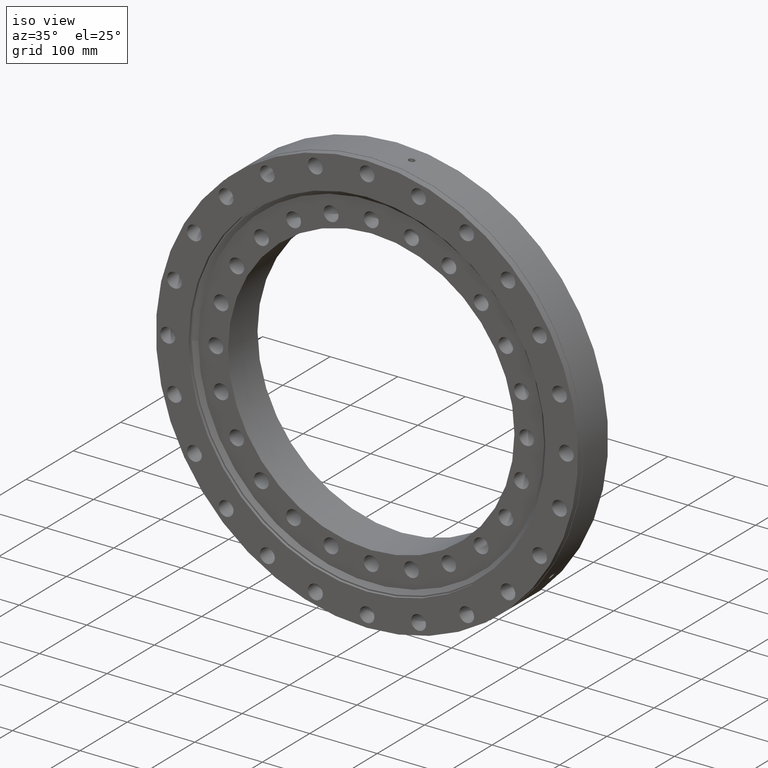
[diagram: clean part render]
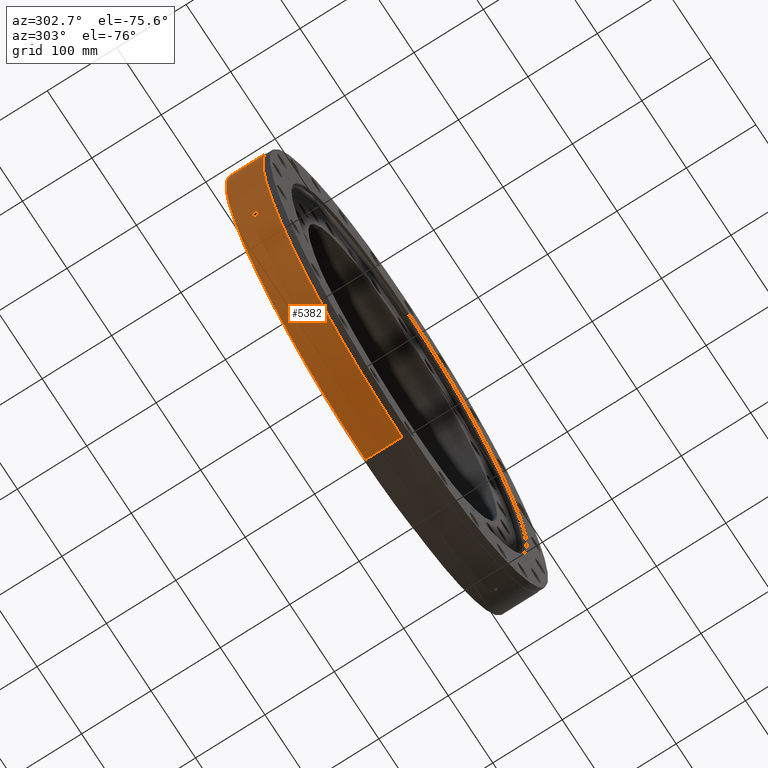
[diagram: tour spotlight — one face highlighted and labeled with its STEP entity id]
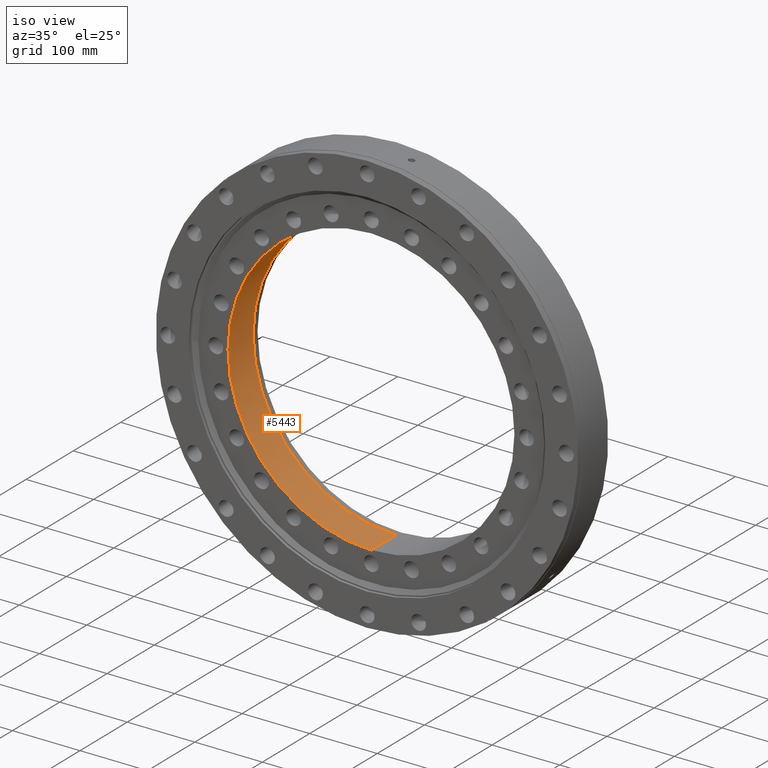
[diagram: tour spotlight — one face highlighted and labeled with its STEP entity id]
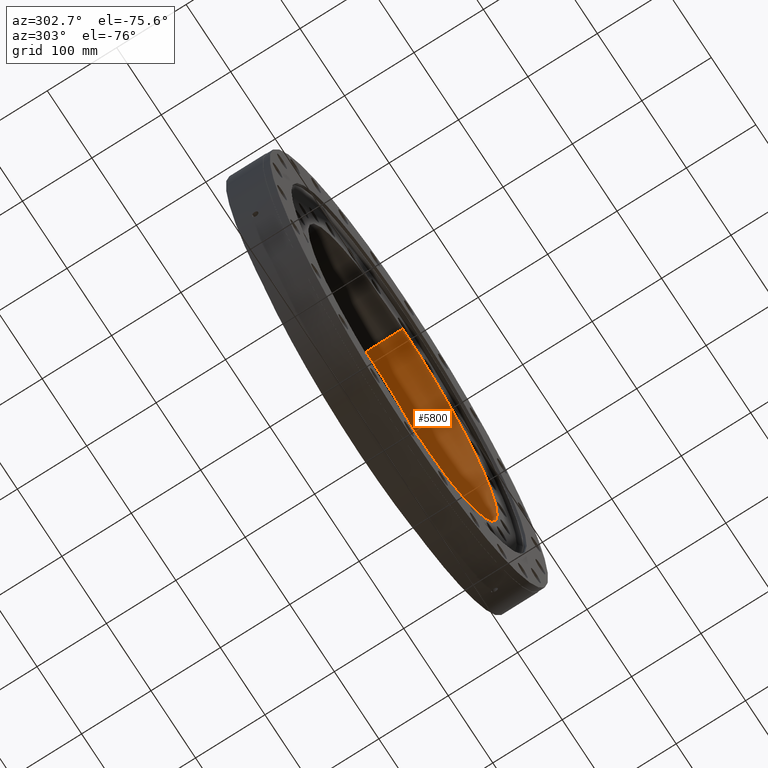
[diagram: tour spotlight — one face highlighted and labeled with its STEP entity id]
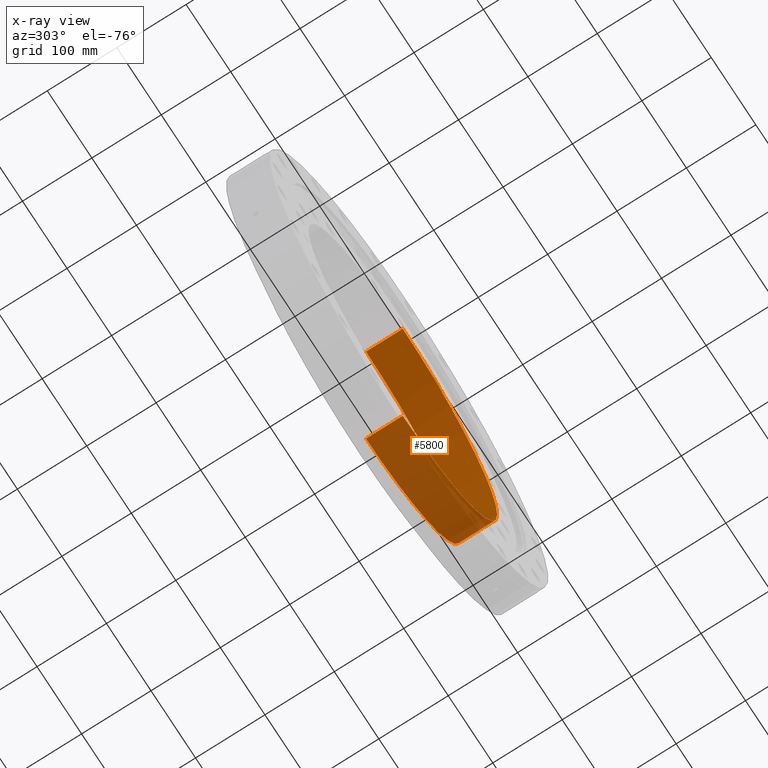
[diagram: x-ray of the same camera — body ghosted, this tour face saturated]
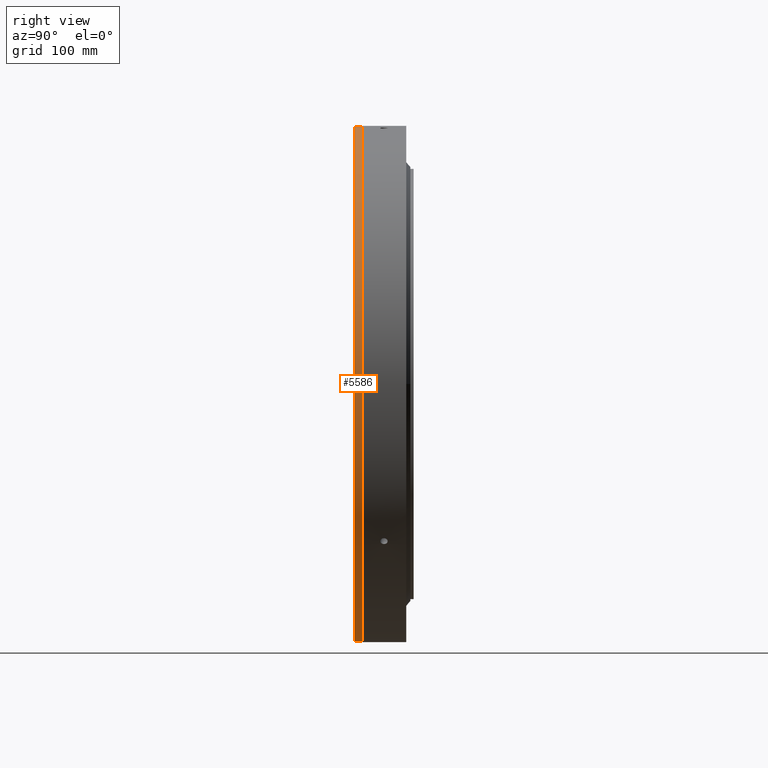
[diagram: tour spotlight — one face highlighted and labeled with its STEP entity id]
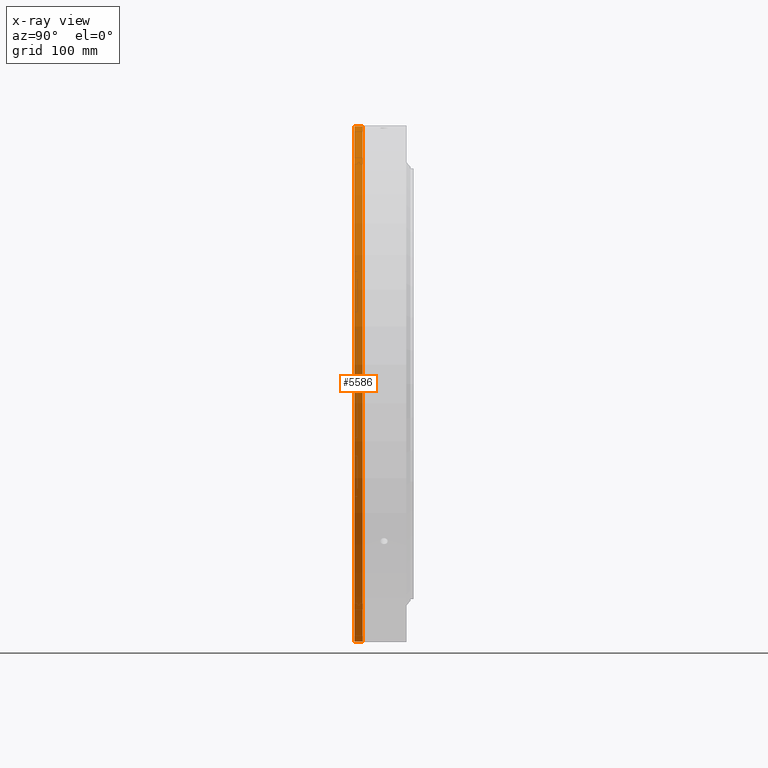
[diagram: x-ray of the same camera — body ghosted, this tour face saturated]
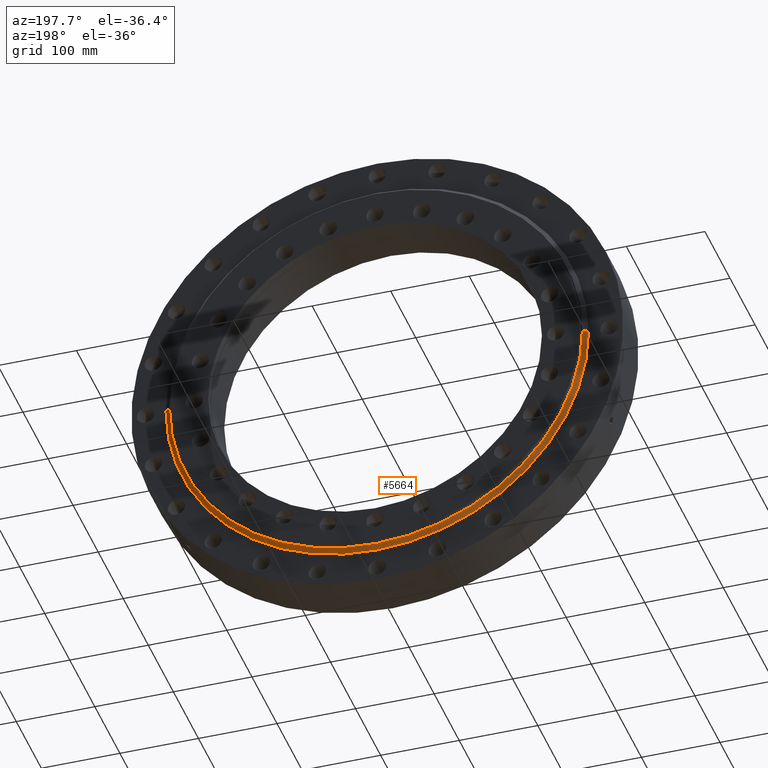
[diagram: tour spotlight — one face highlighted and labeled with its STEP entity id]
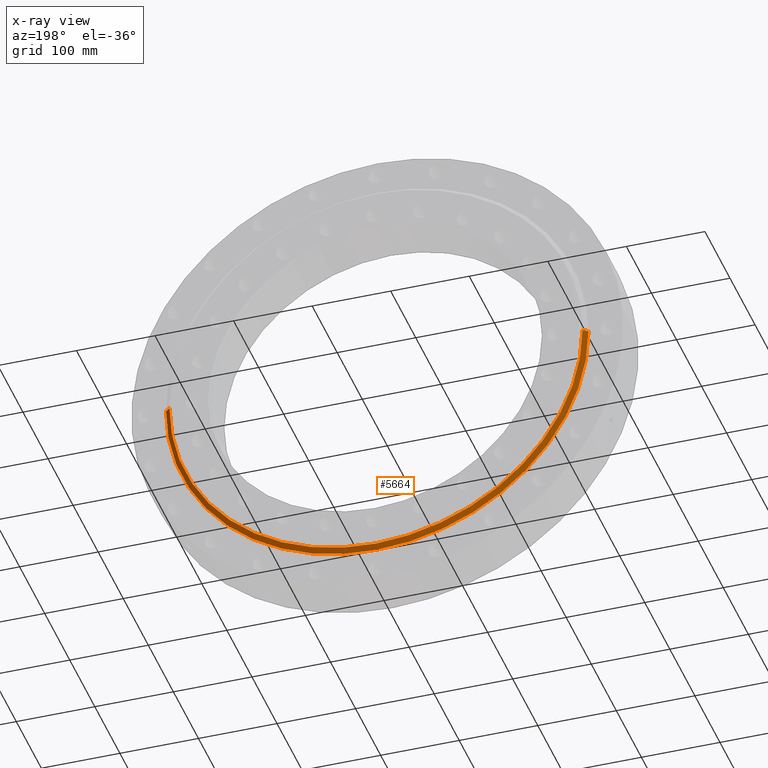
[diagram: x-ray of the same camera — body ghosted, this tour face saturated]
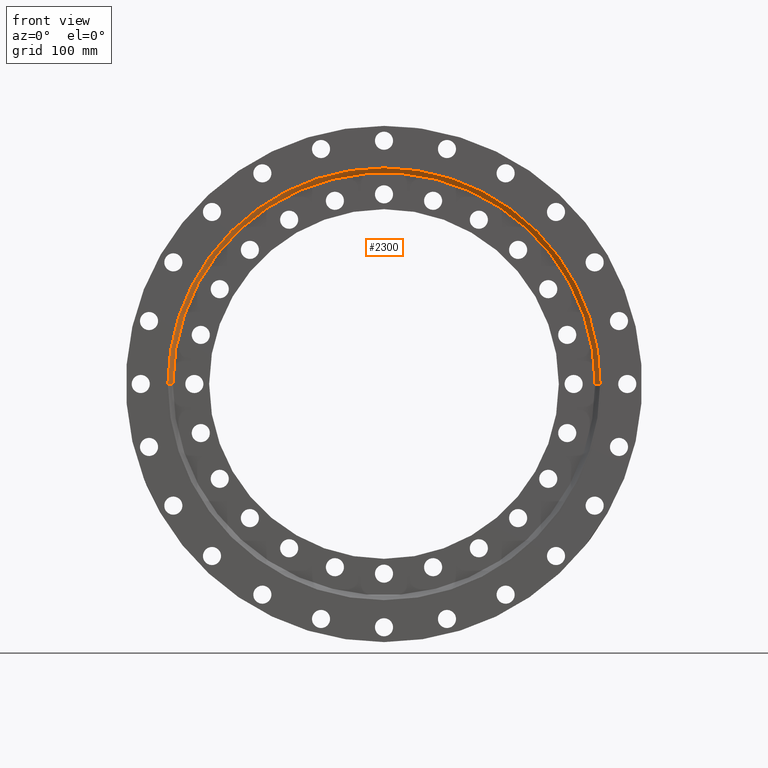
[diagram: tour spotlight — one face highlighted and labeled with its STEP entity id]
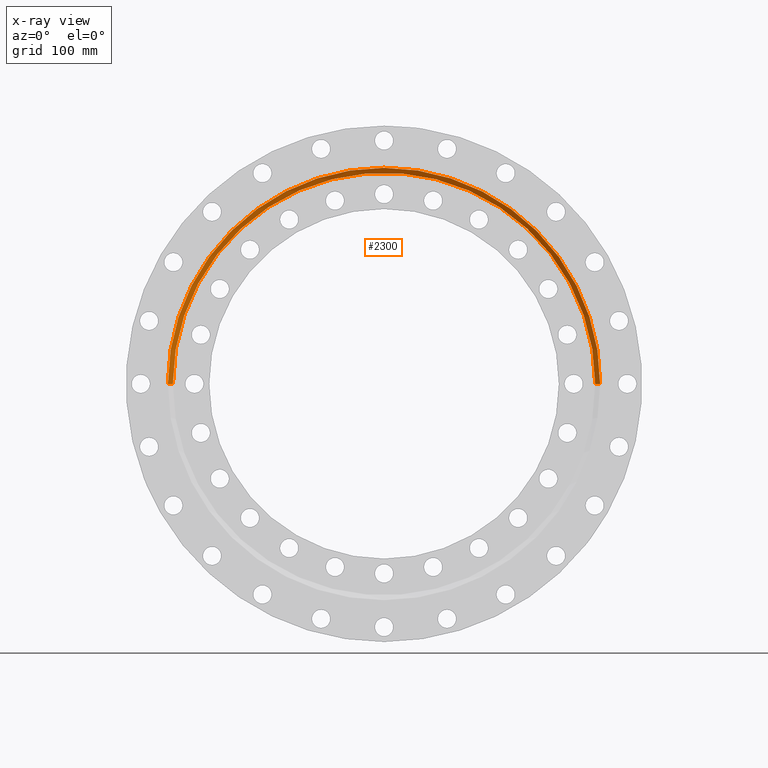
[diagram: x-ray of the same camera — body ghosted, this tour face saturated]
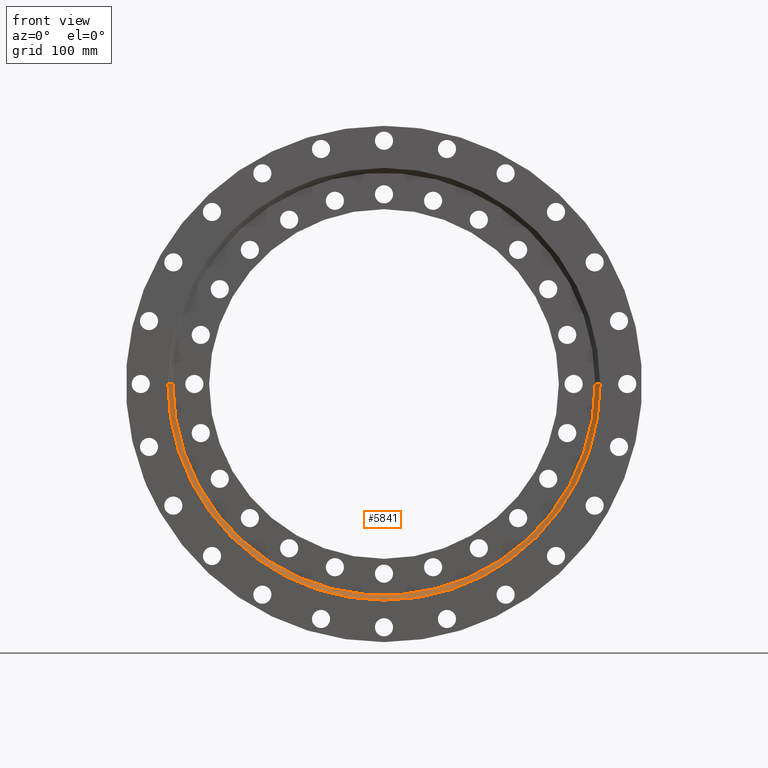
[diagram: tour spotlight — one face highlighted and labeled with its STEP entity id]
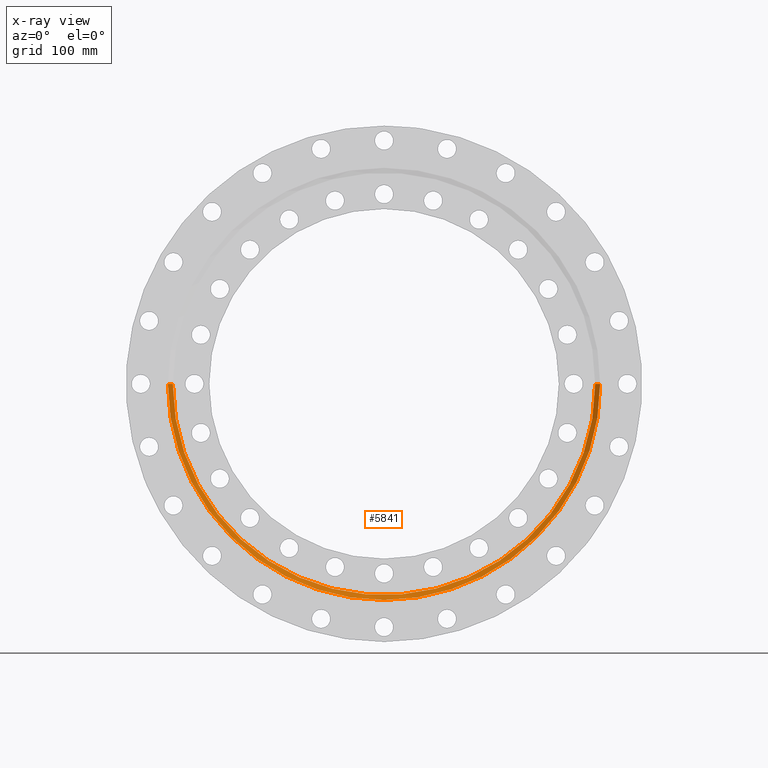
[diagram: x-ray of the same camera — body ghosted, this tour face saturated]
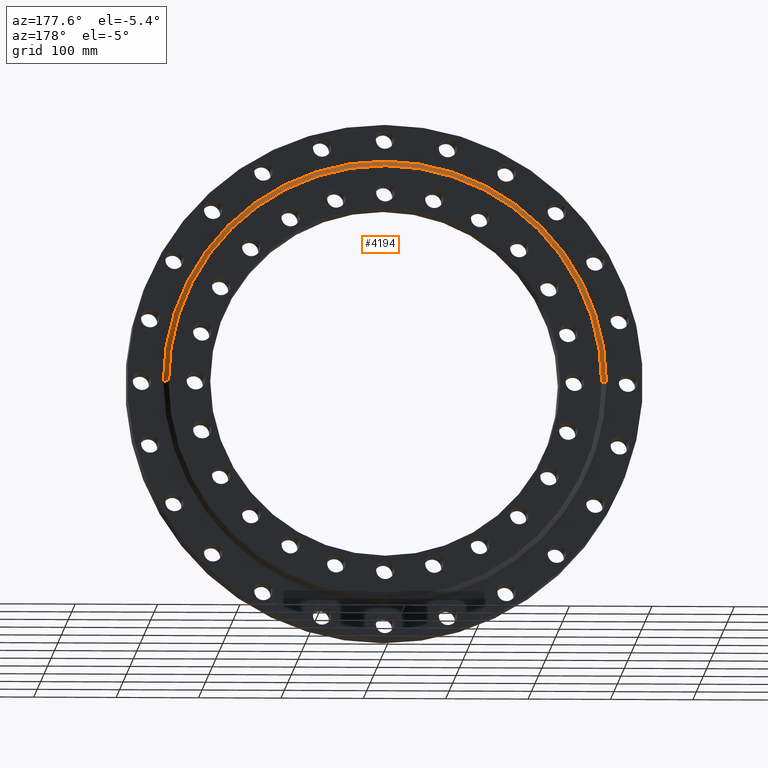
[diagram: tour spotlight — one face highlighted and labeled with its STEP entity id]
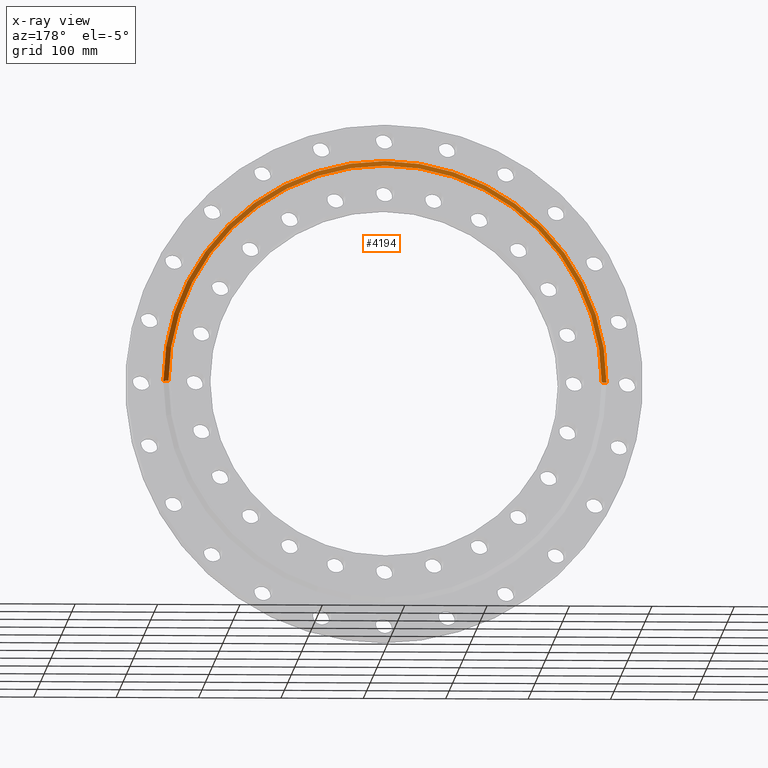
[diagram: x-ray of the same camera — body ghosted, this tour face saturated]
A machine part: a face-by-face anatomy tour. The part has 164 B-rep faces; the first image is the clean iso view, then the 8 largest visible faces are spotlighted one at a time (largest first), each with its STEP entity span.

Face 1 — auxiliary view, entity #5382. In plain terms, the highlighted cylindrical surface (partial cylindrical patch) has radius 313 mm, axis along (-0, 1, -0).
Definition (entity closure, byte-faithful):
#94 = FACE_BOUND ( 'NONE', #2764, .T. ) ;
#124 = CARTESIAN_POINT ( 'NONE',  ( -288.1125197600638900, 3.577392212863133500, -122.3120428765290200 ) ) ;
#159 = VERTEX_POINT ( 'NONE', #1307 ) ;
#198 = CARTESIAN_POINT ( 'NONE',  ( 0.0000000000000000000, -26.00000000000001100, -1.870852563579005500E-015 ) ) ;
#205 = DIRECTION ( 'NONE',  ( -0.0000000000000000000, 1.000000000000000000, -5.328613396463909800E-017 ) ) ;
#211 = DIRECTION ( 'NONE',  ( 0.0000000000000000000, 5.542247527082451000E-017, 1.000000000000000000 ) ) ;
#310 = CARTESIAN_POINT ( 'NONE',  ( -288.9471356195871300, 4.470444970941521500, -120.3272019551742300 ) ) ;
#408 = CARTESIAN_POINT ( 'NONE',  ( -287.4223308064470100, 0.2936311004996152200, -123.9249924502291500 ) ) ;
#453 = EDGE_CURVE ( 'NONE', #4265, #5183, #791, .T. ) ;
#478 = CARTESIAN_POINT ( 'NONE',  ( -290.6453783566009900, 2.259568660996383600, -116.1649305194190600 ) ) ;
#515 = CARTESIAN_POINT ( 'NONE',  ( 3.833144481331215800E-014, 27.00000000000000000, -313.0000000000000000 ) ) ;
#517 = CARTESIAN_POINT ( 'NONE',  ( 0.0000000000000000000, 22.16364734299516900, 0.0000000000000000000 ) ) ;
#531 = CARTESIAN_POINT ( 'NONE',  ( 0.0000000000000000000, 22.16364734299516900, 313.0000000000000000 ) ) ;
#534 = EDGE_CURVE ( 'NONE', #1915, #3803, #3874, .T. ) ;
#575 = CARTESIAN_POINT ( 'NONE',  ( -290.0283648193399100, 3.907533659084911900, -117.6971000829891800 ) ) ;
#595 = CARTESIAN_POINT ( 'NONE',  ( -290.7807561728979500, 1.455759623187262500, -115.8255778453616200 ) ) ;
#597 = ORIENTED_EDGE ( 'NONE', *, *, #534, .F. ) ;
#614 = CARTESIAN_POINT ( 'NONE',  ( -290.8664816977327000, 0.2972624423850824300, -115.6100766576275700 ) ) ;
#616 = CARTESIAN_POINT ( 'NONE',  ( -288.4039144808735400, 4.042871837507980200, -121.6234192838935100 ) ) ;
#697 = DIRECTION ( 'NONE',  ( -0.0000000000000000000, 1.000000000000000000, -0.0000000000000000000 ) ) ;
#751 = CARTESIAN_POINT ( 'NONE',  ( 0.0000000000000000000, 27.00000000000000000, 0.0000000000000000000 ) ) ;
#791 = B_SPLINE_CURVE_WITH_KNOTS ( 'NONE', 3,
 ( #3512, #408, #5785, #5012, #3082, #2293, #1468, #4552, #1891, #1039, #124, #2702, #616, #1897, #3637, #310, #2878, #4078, #3086, #3329, #989, #1518, #575, #5010, #2242, #992, #5235, #478, #3617, #595, #5761, #2951, #614, #1949 ),
 .UNSPECIFIED., .F., .F.,
 ( 4, 2, 2, 2, 2, 2, 2, 2, 2, 2, 2, 2, 2, 2, 2, 2, 4 ),
 ( 0.01406923867263610400, 0.01494836749388207300, 0.01582749631512804200, 0.01670662513637401200, 0.01758575395761998200, 0.01846488277886595300, 0.01934401160011192000, 0.02022314042135789000, 0.02110226924260386000, 0.02198139806384982700, 0.02286052688509579800, 0.02373965570634176800, 0.02461878452758773500, 0.02549791334883370500, 0.02637704217007967600, 0.02725617099132564300, 0.02813529981257161300 ),
 .UNSPECIFIED. ) ;
#832 = DIRECTION ( 'NONE',  ( 0.0000000000000000000, 0.0000000000000000000, 1.000000000000000000 ) ) ;
#989 = CARTESIAN_POINT ( 'NONE',  ( -289.7249448733931000, 4.271330160007757100, -118.4420989416694900 ) ) ;
#992 = CARTESIAN_POINT ( 'NONE',  ( -290.4537887856877800, 2.976681268583297500, -116.6432157797435800 ) ) ;
#999 = LINE ( 'NONE', #5775, #5791 ) ;
#1039 = CARTESIAN_POINT ( 'NONE',  ( -288.0220534009166600, 3.387315662040353300, -122.5248535085143700 ) ) ;
#1093 = AXIS2_PLACEMENT_3D ( 'NONE', #517, #3249, #832 ) ;
#1143 = CARTESIAN_POINT ( 'NONE',  ( -287.4223308064470100, 4.781560686371051300E-009, -123.9249924502291400 ) ) ;
#1307 = CARTESIAN_POINT ( 'NONE',  ( 3.833144481331215800E-014, -26.00000000000002500, -313.0000000000000000 ) ) ;
#1468 = CARTESIAN_POINT ( 'NONE',  ( -287.6567061751364900, 2.252569872384336600, -123.3800894677498000 ) ) ;
#1518 = CARTESIAN_POINT ( 'NONE',  ( -289.9310526904062600, 4.045619703833198200, -117.9366744038163300 ) ) ;
#1612 = VECTOR ( 'NONE', #697, 1000.000000000000000 ) ;
#1891 = CARTESIAN_POINT ( 'NONE',  ( -287.8595056724463500, 2.972155427204412200, -122.9062568243709600 ) ) ;
#1897 = CARTESIAN_POINT ( 'NONE',  ( -288.6148941400606400, 4.268828962022660700, -121.1219091936647100 ) ) ;
#1915 = VERTEX_POINT ( 'NONE', #515 ) ;
#1949 = CARTESIAN_POINT ( 'NONE',  ( -290.8664816977327000, 4.781562806714504500E-009, -115.6100766576275300 ) ) ;
#2034 = CYLINDRICAL_SURFACE ( 'NONE', #1093, 313.0000000000000000 ) ;
#2079 = CARTESIAN_POINT ( 'NONE',  ( -287.4223308064469500, -0.2936974223991007900, -123.9249924502291400 ) ) ;
#2081 = CARTESIAN_POINT ( 'NONE',  ( -287.4339874072038000, -0.5919647935779364100, -123.8979668556240800 ) ) ;
#2087 = CARTESIAN_POINT ( 'NONE',  ( -287.4795000203312200, -1.168570931656107900, -123.7923276129109500 ) ) ;
#2095 = CARTESIAN_POINT ( 'NONE',  ( -287.5131468838155200, -1.449127353490581300, -123.7141993776610300 ) ) ;
#2103 = CARTESIAN_POINT ( 'NONE',  ( -287.6023631017860100, -1.994557629680384900, -123.5066536546053300 ) ) ;
#2106 = CARTESIAN_POINT ( 'NONE',  ( -290.8134451831859900, -1.164875585572374500, -115.7434376930688100 ) ) ;
#2110 = CARTESIAN_POINT ( 'NONE',  ( -290.4543393149496600, -2.974984258971414200, -116.6418445116377300 ) ) ;
#2111 = CARTESIAN_POINT ( 'NONE',  ( -290.5251119934708900, -2.743374535401389200, -116.4653853136435800 ) ) ;
#2128 = CARTESIAN_POINT ( 'NONE',  ( -290.6977613906530600, -1.995689781120564300, -116.0337204640290000 ) ) ;
#2130 = CARTESIAN_POINT ( 'NONE',  ( -290.7814450685380600, -1.450681284605114000, -115.8238488659146300 ) ) ;
#2142 = CARTESIAN_POINT ( 'NONE',  ( -290.2993200001088800, -3.390111961688710500, -117.0271247422379600 ) ) ;
#2148 = CARTESIAN_POINT ( 'NONE',  ( -289.0625839513290300, -4.500103770919799300, -120.0496093614409100 ) ) ;
#2149 = CARTESIAN_POINT ( 'NONE',  ( -289.2872244503950600, -4.499895653902050300, -119.5072714032100800 ) ) ;
#2156 = CARTESIAN_POINT ( 'NONE',  ( -289.3985892850666300, -4.471353546787453200, -119.2373301162856800 ) ) ;
#2161 = CARTESIAN_POINT ( 'NONE',  ( -288.6172860414748100, -4.270945890496516700, -121.1162103665716800 ) ) ;
#2165 = CARTESIAN_POINT ( 'NONE',  ( -288.7257352755450500, -4.355939892438198200, -120.8574907621427000 ) ) ;
#2205 = CARTESIAN_POINT ( 'NONE',  ( -287.4223308064470100, 4.781560686371051300E-009, -123.9249924502291400 ) ) ;
#2234 = CARTESIAN_POINT ( 'NONE',  ( -288.1132565672345400, -3.578751981498493600, -122.3103055898141300 ) ) ;
#2240 = CARTESIAN_POINT ( 'NONE',  ( -288.3034848231486100, -3.904596301180536200, -121.8612329745573100 ) ) ;
#2241 = CARTESIAN_POINT ( 'NONE',  ( -288.4060175393745500, -4.045559581703730400, -121.6184330707484400 ) ) ;
#2242 = CARTESIAN_POINT ( 'NONE',  ( -290.2986066895392700, 3.391797598056027300, -117.0288945581943800 ) ) ;
#2248 = CARTESIAN_POINT ( 'NONE',  ( -287.7862483671474400, -2.744959215117995100, -123.0776251358303900 ) ) ;
#2261 = CARTESIAN_POINT ( 'NONE',  ( -287.8595900166477000, -2.972762010858467400, -122.9060640484529600 ) ) ;
#2277 = CARTESIAN_POINT ( 'NONE',  ( -289.9313114121471800, -4.045117715904899200, -117.9360334649636900 ) ) ;
#2290 = CARTESIAN_POINT ( 'NONE',  ( -290.0298995997559900, -3.905342523506595100, -117.6933212095540900 ) ) ;
#2293 = CARTESIAN_POINT ( 'NONE',  ( -287.6018206092693400, 1.991454826082296800, -123.5079161048776200 ) ) ;
#2299 = CARTESIAN_POINT ( 'NONE',  ( -290.2145463854467900, -3.576387510117327000, -117.2372704623799000 ) ) ;
#2313 = CARTESIAN_POINT ( 'NONE',  ( -289.6194004965350900, -4.355841187476849000, -118.6999883297143600 ) ) ;
#2322 = CARTESIAN_POINT ( 'NONE',  ( -289.7268151530732900, -4.269498376676342100, -118.4375190042131300 ) ) ;
#2334 = CARTESIAN_POINT ( 'NONE',  ( -290.6464982608520700, -2.254178133049702800, -116.1621268907327400 ) ) ;
#2380 = CARTESIAN_POINT ( 'NONE',  ( -290.8557067085412800, -0.5896892760800536100, -115.6371961930860700 ) ) ;
#2390 = CARTESIAN_POINT ( 'NONE',  ( -287.6579286780805700, -2.257531372928848900, -123.3772370696872100 ) ) ;
#2457 = CARTESIAN_POINT ( 'NONE',  ( -290.8664816977327000, 4.781562806714504500E-009, -115.6100766576275300 ) ) ;
#2463 = CARTESIAN_POINT ( 'NONE',  ( -288.9481078764931100, -4.470844184222708700, -120.3248695753298700 ) ) ;
#2542 = CARTESIAN_POINT ( 'NONE',  ( 0.0000000000000000000, 27.00000000000000000, 313.0000000000000000 ) ) ;
#2621 = CARTESIAN_POINT ( 'NONE',  ( -288.0243354670608400, -3.392747403317232000, -122.5194936456762800 ) ) ;
#2651 = LINE ( 'NONE', #531, #1612 ) ;
#2656 = CARTESIAN_POINT ( 'NONE',  ( -290.8664816977327500, -0.2973295846071521400, -115.6100766576275700 ) ) ;
#2685 = VERTEX_POINT ( 'NONE', #4581 ) ;
#2702 = CARTESIAN_POINT ( 'NONE',  ( -288.3034071903126100, 3.904560608749242200, -121.8614183307409300 ) ) ;
#2764 = EDGE_LOOP ( 'NONE', ( #4242, #4246 ) ) ;
#2860 = DIRECTION ( 'NONE',  ( -0.0000000000000000000, 1.000000000000000000, -0.0000000000000000000 ) ) ;
#2878 = CARTESIAN_POINT ( 'NONE',  ( -289.0592990100092800, 4.499748922822593800, -120.0575265797170800 ) ) ;
#2951 = CARTESIAN_POINT ( 'NONE',  ( -290.8557104707144300, 0.5914388478671622800, -115.6371872584075600 ) ) ;
#3082 = CARTESIAN_POINT ( 'NONE',  ( -287.5133073422488800, 1.449893656899619000, -123.7138256600990900 ) ) ;
#3086 = CARTESIAN_POINT ( 'NONE',  ( -289.3983652586895800, 4.471227193688883400, -119.2378666446100400 ) ) ;
#3249 = DIRECTION ( 'NONE',  ( -0.0000000000000000000, 1.000000000000000000, -0.0000000000000000000 ) ) ;
#3271 = EDGE_LOOP ( 'NONE', ( #4280, #4284, #4259, #597 ) ) ;
#3329 = CARTESIAN_POINT ( 'NONE',  ( -289.6169240884494200, 4.357377239424614000, -118.7060231745004400 ) ) ;
#3512 = CARTESIAN_POINT ( 'NONE',  ( -287.4223308064470100, 4.781560686371051300E-009, -123.9249924502291400 ) ) ;
#3570 = B_SPLINE_CURVE_WITH_KNOTS ( 'NONE', 3,
 ( #2457, #2656, #2380, #2106, #2130, #2128, #2334, #2111, #2110, #2142, #2299, #2290, #2277, #2322, #2313, #2156, #2149, #2148, #2463, #2165, #2161, #2241, #2240, #2234, #2621, #2261, #2248, #2390, #2103, #2095, #2087, #2081, #2079, #2205 ),
 .UNSPECIFIED., .F., .F.,
 ( 4, 2, 2, 2, 2, 2, 2, 2, 2, 2, 2, 2, 2, 2, 2, 2, 4 ),
 ( 3.467392048711718500E-018, 0.0008793274170397602100, 0.001758654834079516900, 0.002637982251119273500, 0.003517309668159030400, 0.004396637085198786500, 0.005275964502238543500, 0.006155291919278300400, 0.007034619336318057400, 0.007913946753357813500, 0.008793274170397569500, 0.009672601587437327400, 0.01055192900447708300, 0.01143125642151683800, 0.01231058383855659400, 0.01318991125559635000, 0.01406923867263610400 ),
 .UNSPECIFIED. ) ;
#3617 = CARTESIAN_POINT ( 'NONE',  ( -290.6974612404390500, 1.997045766983338100, -116.0344719126937200 ) ) ;
#3637 = CARTESIAN_POINT ( 'NONE',  ( -288.7255234907002500, 4.355726754575621300, -120.8579943493457000 ) ) ;
#3713 = FACE_OUTER_BOUND ( 'NONE', #3271, .T. ) ;
#3803 = VERTEX_POINT ( 'NONE', #2542 ) ;
#3844 = EDGE_CURVE ( 'NONE', #5183, #4265, #3570, .T. ) ;
#3874 = CIRCLE ( 'NONE', #4034, 313.0000000000000000 ) ;
#4009 = DIRECTION ( 'NONE',  ( 0.0000000000000000000, 0.0000000000000000000, 1.000000000000000000 ) ) ;
#4034 = AXIS2_PLACEMENT_3D ( 'NONE', #751, #2860, #4009 ) ;
#4078 = CARTESIAN_POINT ( 'NONE',  ( -289.2863921887574700, 4.500247904899089800, -119.5092938938634900 ) ) ;
#4108 = AXIS2_PLACEMENT_3D ( 'NONE', #198, #205, #211 ) ;
#4242 = ORIENTED_EDGE ( 'NONE', *, *, #3844, .T. ) ;
#4246 = ORIENTED_EDGE ( 'NONE', *, *, #453, .T. ) ;
#4259 = ORIENTED_EDGE ( 'NONE', *, *, #5356, .T. ) ;
#4265 = VERTEX_POINT ( 'NONE', #1143 ) ;
#4280 = ORIENTED_EDGE ( 'NONE', *, *, #5177, .F. ) ;
#4284 = ORIENTED_EDGE ( 'NONE', *, *, #5835, .T. ) ;
#4552 = CARTESIAN_POINT ( 'NONE',  ( -287.7862924793969900, 2.745441691827570800, -123.0775241283382300 ) ) ;
#4581 = CARTESIAN_POINT ( 'NONE',  ( 0.0000000000000000000, -25.99999999999999300, 313.0000000000000000 ) ) ;
#5010 = CARTESIAN_POINT ( 'NONE',  ( -290.2118697871854900, 3.581686789275470700, -117.2438928147260100 ) ) ;
#5012 = CARTESIAN_POINT ( 'NONE',  ( -287.4791226924869500, 1.165427093442880300, -123.7932038699731800 ) ) ;
#5177 = EDGE_CURVE ( 'NONE', #159, #1915, #999, .T. ) ;
#5183 = VERTEX_POINT ( 'NONE', #5810 ) ;
#5235 = CARTESIAN_POINT ( 'NONE',  ( -290.5231546136482700, 2.750363332688169100, -116.4702694938387100 ) ) ;
#5356 = EDGE_CURVE ( 'NONE', #2685, #3803, #2651, .T. ) ;
#5382 = ADVANCED_FACE ( 'NONE', ( #3713, #94 ), #2034, .T. ) ;
#5629 = CIRCLE ( 'NONE', #4108, 313.0000000000000000 ) ;
#5758 = DIRECTION ( 'NONE',  ( -0.0000000000000000000, 1.000000000000000000, -0.0000000000000000000 ) ) ;
#5761 = CARTESIAN_POINT ( 'NONE',  ( -290.8126661714173300, 1.173644481258609800, -115.7453955228105100 ) ) ;
#5775 = CARTESIAN_POINT ( 'NONE',  ( 3.833144481331215800E-014, 22.16364734299516900, -313.0000000000000000 ) ) ;
#5785 = CARTESIAN_POINT ( 'NONE',  ( -287.4336051268159600, 0.5854575949762107500, -123.8988537163938000 ) ) ;
#5791 = VECTOR ( 'NONE', #5758, 1000.000000000000000 ) ;
#5810 = CARTESIAN_POINT ( 'NONE',  ( -290.8664816977327000, 4.781562806714504500E-009, -115.6100766576275300 ) ) ;
#5835 = EDGE_CURVE ( 'NONE', #159, #2685, #5629, .T. ) ;

Face 2 — iso view, entity #5443. In plain terms, the highlighted cylindrical surface (partial cylindrical patch) has radius 212 mm, axis along (-0, 1, -0).
Definition (entity closure, byte-faithful):
#319 = AXIS2_PLACEMENT_3D ( 'NONE', #5246, #5248, #5253 ) ;
#400 = ORIENTED_EDGE ( 'NONE', *, *, #5028, .F. ) ;
#407 = ORIENTED_EDGE ( 'NONE', *, *, #4834, .T. ) ;
#441 = AXIS2_PLACEMENT_3D ( 'NONE', #5073, #5076, #5078 ) ;
#600 = VECTOR ( 'NONE', #5148, 1000.000000000000000 ) ;
#694 = ORIENTED_EDGE ( 'NONE', *, *, #4956, .F. ) ;
#734 = CYLINDRICAL_SURFACE ( 'NONE', #1020, 212.0000000000000300 ) ;
#754 = LINE ( 'NONE', #4903, #3761 ) ;
#773 = CARTESIAN_POINT ( 'NONE',  ( 2.596251214192389200E-014, -27.00000000000005300, -212.0000000000000300 ) ) ;
#783 = ORIENTED_EDGE ( 'NONE', *, *, #5071, .F. ) ;
#866 = EDGE_LOOP ( 'NONE', ( #783, #407, #694, #400 ) ) ;
#1020 = AXIS2_PLACEMENT_3D ( 'NONE', #1266, #1294, #1253 ) ;
#1244 = FACE_OUTER_BOUND ( 'NONE', #866, .T. ) ;
#1253 = DIRECTION ( 'NONE',  ( 0.0000000000000000000, 3.273063162220390300E-017, 1.000000000000000000 ) ) ;
#1266 = CARTESIAN_POINT ( 'NONE',  ( 0.0000000000000000000, 31.02910628019324300, -1.692367527159823000E-015 ) ) ;
#1294 = DIRECTION ( 'NONE',  ( -0.0000000000000000000, 1.000000000000000000, -2.727064569436389700E-017 ) ) ;
#3498 = CARTESIAN_POINT ( 'NONE',  ( 0.0000000000000000000, -27.00000000000003900, 212.0000000000000300 ) ) ;
#3501 = LINE ( 'NONE', #5112, #600 ) ;
#3528 = VERTEX_POINT ( 'NONE', #3498 ) ;
#3709 = CIRCLE ( 'NONE', #319, 212.0000000000000300 ) ;
#3761 = VECTOR ( 'NONE', #4555, 1000.000000000000000 ) ;
#3918 = CIRCLE ( 'NONE', #441, 212.0000000000000300 ) ;
#4261 = VERTEX_POINT ( 'NONE', #5839 ) ;
#4555 = DIRECTION ( 'NONE',  ( -0.0000000000000000000, 1.000000000000000000, -2.727064569436389700E-017 ) ) ;
#4834 = EDGE_CURVE ( 'NONE', #5365, #5250, #754, .T. ) ;
#4903 = CARTESIAN_POINT ( 'NONE',  ( 2.596251214192389200E-014, 31.02910628019323600, -212.0000000000000300 ) ) ;
#4956 = EDGE_CURVE ( 'NONE', #4261, #5250, #3918, .T. ) ;
#5028 = EDGE_CURVE ( 'NONE', #3528, #4261, #3501, .T. ) ;
#5071 = EDGE_CURVE ( 'NONE', #5365, #3528, #3709, .T. ) ;
#5073 = CARTESIAN_POINT ( 'NONE',  ( 0.0000000000000000000, 25.99999999999993600, -1.555220551633371000E-015 ) ) ;
#5076 = DIRECTION ( 'NONE',  ( 0.0000000000000000000, -1.000000000000000000, 0.0000000000000000000 ) ) ;
#5078 = DIRECTION ( 'NONE',  ( 0.0000000000000000000, 0.0000000000000000000, 1.000000000000000000 ) ) ;
#5112 = CARTESIAN_POINT ( 'NONE',  ( 0.0000000000000000000, 31.02910628019325000, 212.0000000000000300 ) ) ;
#5148 = DIRECTION ( 'NONE',  ( -0.0000000000000000000, 1.000000000000000000, -2.727064569436389700E-017 ) ) ;
#5246 = CARTESIAN_POINT ( 'NONE',  ( 0.0000000000000000000, -27.00000000000004600, -1.098763298320850900E-016 ) ) ;
#5248 = DIRECTION ( 'NONE',  ( -0.0000000000000000000, 1.000000000000000000, -2.727064569436389700E-017 ) ) ;
#5250 = VERTEX_POINT ( 'NONE', #5817 ) ;
#5253 = DIRECTION ( 'NONE',  ( 0.0000000000000000000, 3.273063162220390300E-017, 1.000000000000000000 ) ) ;
#5365 = VERTEX_POINT ( 'NONE', #773 ) ;
#5443 = ADVANCED_FACE ( 'NONE', ( #1244 ), #734, .F. ) ;
#5817 = CARTESIAN_POINT ( 'NONE',  ( 2.596251214192389200E-014, 25.99999999999993600, -212.0000000000000300 ) ) ;
#5839 = CARTESIAN_POINT ( 'NONE',  ( 0.0000000000000000000, 25.99999999999993600, 212.0000000000000300 ) ) ;

Face 3 — auxiliary view, entity #5800. An x-ray twin of the same camera follows (body ghosted, this face saturated) — the face is partly hidden behind the body. In plain terms, the highlighted cylindrical surface (partial cylindrical patch) has radius 212 mm, axis along (-0, 1, -0).
Definition (entity closure, byte-faithful):
#15 = CIRCLE ( 'NONE', #5475, 212.0000000000000300 ) ;
#541 = ORIENTED_EDGE ( 'NONE', *, *, #5028, .T. ) ;
#600 = VECTOR ( 'NONE', #5148, 1000.000000000000000 ) ;
#607 = ORIENTED_EDGE ( 'NONE', *, *, #5727, .F. ) ;
#754 = LINE ( 'NONE', #4903, #3761 ) ;
#773 = CARTESIAN_POINT ( 'NONE',  ( 2.596251214192389200E-014, -27.00000000000005300, -212.0000000000000300 ) ) ;
#1374 = EDGE_LOOP ( 'NONE', ( #1436, #607, #541, #2803 ) ) ;
#1436 = ORIENTED_EDGE ( 'NONE', *, *, #4834, .F. ) ;
#1677 = FACE_OUTER_BOUND ( 'NONE', #1374, .T. ) ;
#2677 = AXIS2_PLACEMENT_3D ( 'NONE', #5124, #5171, #5232 ) ;
#2803 = ORIENTED_EDGE ( 'NONE', *, *, #4605, .F. ) ;
#3069 = CARTESIAN_POINT ( 'NONE',  ( 0.0000000000000000000, 31.02910628019324300, -1.692367527159823000E-015 ) ) ;
#3080 = DIRECTION ( 'NONE',  ( -0.0000000000000000000, 1.000000000000000000, -2.727064569436389700E-017 ) ) ;
#3498 = CARTESIAN_POINT ( 'NONE',  ( 0.0000000000000000000, -27.00000000000003900, 212.0000000000000300 ) ) ;
#3501 = LINE ( 'NONE', #5112, #600 ) ;
#3528 = VERTEX_POINT ( 'NONE', #3498 ) ;
#3530 = DIRECTION ( 'NONE',  ( 0.0000000000000000000, 3.273063162220390300E-017, 1.000000000000000000 ) ) ;
#3761 = VECTOR ( 'NONE', #4555, 1000.000000000000000 ) ;
#4261 = VERTEX_POINT ( 'NONE', #5839 ) ;
#4555 = DIRECTION ( 'NONE',  ( -0.0000000000000000000, 1.000000000000000000, -2.727064569436389700E-017 ) ) ;
#4605 = EDGE_CURVE ( 'NONE', #5250, #4261, #15, .T. ) ;
#4627 = AXIS2_PLACEMENT_3D ( 'NONE', #3069, #3080, #3530 ) ;
#4834 = EDGE_CURVE ( 'NONE', #5365, #5250, #754, .T. ) ;
#4903 = CARTESIAN_POINT ( 'NONE',  ( 2.596251214192389200E-014, 31.02910628019323600, -212.0000000000000300 ) ) ;
#4954 = CYLINDRICAL_SURFACE ( 'NONE', #4627, 212.0000000000000300 ) ;
#5028 = EDGE_CURVE ( 'NONE', #3528, #4261, #3501, .T. ) ;
#5031 = CIRCLE ( 'NONE', #2677, 212.0000000000000300 ) ;
#5112 = CARTESIAN_POINT ( 'NONE',  ( 0.0000000000000000000, 31.02910628019325000, 212.0000000000000300 ) ) ;
#5124 = CARTESIAN_POINT ( 'NONE',  ( 0.0000000000000000000, -27.00000000000004600, -1.098763298320850900E-016 ) ) ;
#5148 = DIRECTION ( 'NONE',  ( -0.0000000000000000000, 1.000000000000000000, -2.727064569436389700E-017 ) ) ;
#5171 = DIRECTION ( 'NONE',  ( -0.0000000000000000000, 1.000000000000000000, -2.727064569436389700E-017 ) ) ;
#5232 = DIRECTION ( 'NONE',  ( 0.0000000000000000000, 3.273063162220390300E-017, 1.000000000000000000 ) ) ;
#5250 = VERTEX_POINT ( 'NONE', #5817 ) ;
#5365 = VERTEX_POINT ( 'NONE', #773 ) ;
#5475 = AXIS2_PLACEMENT_3D ( 'NONE', #5679, #5687, #5645 ) ;
#5645 = DIRECTION ( 'NONE',  ( 0.0000000000000000000, 0.0000000000000000000, 1.000000000000000000 ) ) ;
#5679 = CARTESIAN_POINT ( 'NONE',  ( 0.0000000000000000000, 25.99999999999993600, -1.555220551633371000E-015 ) ) ;
#5687 = DIRECTION ( 'NONE',  ( 0.0000000000000000000, -1.000000000000000000, 0.0000000000000000000 ) ) ;
#5727 = EDGE_CURVE ( 'NONE', #3528, #5365, #5031, .T. ) ;
#5800 = ADVANCED_FACE ( 'NONE', ( #1677 ), #4954, .F. ) ;
#5817 = CARTESIAN_POINT ( 'NONE',  ( 2.596251214192389200E-014, 25.99999999999993600, -212.0000000000000300 ) ) ;
#5839 = CARTESIAN_POINT ( 'NONE',  ( 0.0000000000000000000, 25.99999999999993600, 212.0000000000000300 ) ) ;

Face 4 — right view, entity #5586. An x-ray twin of the same camera follows (body ghosted, this face saturated) — the face is partly hidden behind the body. In plain terms, the highlighted cylindrical surface (partial cylindrical patch) has radius 312.5 mm, axis along (-0, 1, -0).
Definition (entity closure, byte-faithful):
#97 = CARTESIAN_POINT ( 'NONE',  ( 0.0000000000000000000, -35.99999999999999300, 312.5000000000000000 ) ) ;
#339 = CYLINDRICAL_SURFACE ( 'NONE', #2721, 312.5000000000000000 ) ;
#490 = FACE_OUTER_BOUND ( 'NONE', #2230, .T. ) ;
#932 = CARTESIAN_POINT ( 'NONE',  ( 0.0000000000000000000, -26.00000000000001100, -1.870852563579005500E-015 ) ) ;
#956 = DIRECTION ( 'NONE',  ( 0.0000000000000000000, 5.551115123125782700E-017, 1.000000000000000000 ) ) ;
#1090 = AXIS2_PLACEMENT_3D ( 'NONE', #932, #2286, #956 ) ;
#1262 = AXIS2_PLACEMENT_3D ( 'NONE', #4391, #3220, #3820 ) ;
#1781 = DIRECTION ( 'NONE',  ( -0.0000000000000000000, 1.000000000000000000, -5.328613396463909800E-017 ) ) ;
#2129 = VERTEX_POINT ( 'NONE', #97 ) ;
#2230 = EDGE_LOOP ( 'NONE', ( #4590, #4563, #4574, #4533 ) ) ;
#2286 = DIRECTION ( 'NONE',  ( -0.0000000000000000000, 1.000000000000000000, -5.328613396463909800E-017 ) ) ;
#2464 = CARTESIAN_POINT ( 'NONE',  ( 0.0000000000000000000, -25.99999999999999300, 312.5000000000000000 ) ) ;
#2538 = CARTESIAN_POINT ( 'NONE',  ( 3.827021247335479100E-014, -26.00000000000002500, -312.5000000000000000 ) ) ;
#2681 = DIRECTION ( 'NONE',  ( 0.0000000000000000000, 4.440892098500626400E-017, 1.000000000000000000 ) ) ;
#2707 = DIRECTION ( 'NONE',  ( -0.0000000000000000000, 1.000000000000000000, -5.328613396463909800E-017 ) ) ;
#2721 = AXIS2_PLACEMENT_3D ( 'NONE', #2729, #2707, #2681 ) ;
#2729 = CARTESIAN_POINT ( 'NONE',  ( 0.0000000000000000000, 61.10955710955709500, -6.512584093319245700E-015 ) ) ;
#2892 = VERTEX_POINT ( 'NONE', #2464 ) ;
#3046 = CIRCLE ( 'NONE', #1262, 312.5000000000000000 ) ;
#3220 = DIRECTION ( 'NONE',  ( 0.0000000000000000000, -1.000000000000000000, 0.0000000000000000000 ) ) ;
#3221 = LINE ( 'NONE', #3661, #3384 ) ;
#3260 = VERTEX_POINT ( 'NONE', #4268 ) ;
#3384 = VECTOR ( 'NONE', #3604, 1000.000000000000000 ) ;
#3440 = LINE ( 'NONE', #3592, #3473 ) ;
#3473 = VECTOR ( 'NONE', #1781, 1000.000000000000000 ) ;
#3559 = CIRCLE ( 'NONE', #1090, 312.5000000000000000 ) ;
#3592 = CARTESIAN_POINT ( 'NONE',  ( 3.827021247335479100E-014, 61.10955710955708000, -312.5000000000000000 ) ) ;
#3604 = DIRECTION ( 'NONE',  ( -0.0000000000000000000, 1.000000000000000000, -5.328613396463909800E-017 ) ) ;
#3661 = CARTESIAN_POINT ( 'NONE',  ( 0.0000000000000000000, 61.10955710955710900, 312.5000000000000000 ) ) ;
#3820 = DIRECTION ( 'NONE',  ( 0.0000000000000000000, 0.0000000000000000000, 1.000000000000000000 ) ) ;
#3900 = VERTEX_POINT ( 'NONE', #2538 ) ;
#4268 = CARTESIAN_POINT ( 'NONE',  ( 3.827021247335479100E-014, -35.99999999999999300, -312.5000000000000000 ) ) ;
#4274 = EDGE_CURVE ( 'NONE', #3260, #2129, #3046, .T. ) ;
#4320 = EDGE_CURVE ( 'NONE', #3260, #3900, #3440, .T. ) ;
#4391 = CARTESIAN_POINT ( 'NONE',  ( 0.0000000000000000000, -35.99999999999999300, -1.337991223932615400E-015 ) ) ;
#4485 = EDGE_CURVE ( 'NONE', #2129, #2892, #3221, .T. ) ;
#4532 = EDGE_CURVE ( 'NONE', #2892, #3900, #3559, .T. ) ;
#4533 = ORIENTED_EDGE ( 'NONE', *, *, #4485, .F. ) ;
#4563 = ORIENTED_EDGE ( 'NONE', *, *, #4320, .T. ) ;
#4574 = ORIENTED_EDGE ( 'NONE', *, *, #4532, .F. ) ;
#4590 = ORIENTED_EDGE ( 'NONE', *, *, #4274, .F. ) ;
#5586 = ADVANCED_FACE ( 'NONE', ( #490 ), #339, .T. ) ;

Face 5 — auxiliary view, entity #5664. An x-ray twin of the same camera follows (body ghosted, this face saturated) — the face is partly hidden behind the body. In plain terms, the highlighted conical surface has half-angle 49.914 deg.
Definition (entity closure, byte-faithful):
#17 = DIRECTION ( 'NONE',  ( 1.836909530733565900E-016, 1.000000000000000000, -0.0000000000000000000 ) ) ;
#69 = CARTESIAN_POINT ( 'NONE',  ( 268.9125000000000800, 26.99999999999990400, 0.0000000000000000000 ) ) ;
#686 = AXIS2_PLACEMENT_3D ( 'NONE', #3253, #5214, #1740 ) ;
#831 = CIRCLE ( 'NONE', #4973, 262.9125000000000200 ) ;
#1052 = VECTOR ( 'NONE', #3764, 1000.000000000000000 ) ;
#1565 = EDGE_CURVE ( 'NONE', #1751, #4768, #831, .T. ) ;
#1740 = DIRECTION ( 'NONE',  ( -1.000000000000000000, 1.806247657782757700E-016, 0.0000000000000000000 ) ) ;
#1751 = VERTEX_POINT ( 'NONE', #3707 ) ;
#1774 = VERTEX_POINT ( 'NONE', #69 ) ;
#1783 = DIRECTION ( 'NONE',  ( -1.000000000000000000, 1.847468542855535500E-016, 0.0000000000000000000 ) ) ;
#1984 = AXIS2_PLACEMENT_3D ( 'NONE', #3393, #3383, #3343 ) ;
#2163 = ORIENTED_EDGE ( 'NONE', *, *, #2674, .F. ) ;
#2172 = ORIENTED_EDGE ( 'NONE', *, *, #1565, .F. ) ;
#2194 = ORIENTED_EDGE ( 'NONE', *, *, #2636, .T. ) ;
#2196 = ORIENTED_EDGE ( 'NONE', *, *, #2482, .T. ) ;
#2228 = LINE ( 'NONE', #2508, #3269 ) ;
#2391 = FACE_OUTER_BOUND ( 'NONE', #3464, .T. ) ;
#2407 = CARTESIAN_POINT ( 'NONE',  ( 268.9125000000000800, 26.99999999999990400, 0.0000000000000000000 ) ) ;
#2482 = EDGE_CURVE ( 'NONE', #1774, #4609, #5079, .T. ) ;
#2508 = CARTESIAN_POINT ( 'NONE',  ( -268.9125000000000800, 27.00000000000000000, 3.293228323757126500E-014 ) ) ;
#2529 = CARTESIAN_POINT ( 'NONE',  ( 9.173455204810622700E-017, 32.05000000000000400, 0.0000000000000000000 ) ) ;
#2572 = DIRECTION ( 'NONE',  ( -0.7650765054985542200, -0.6439393921279554800, 9.369484935616465400E-017 ) ) ;
#2605 = LINE ( 'NONE', #2407, #1052 ) ;
#2636 = EDGE_CURVE ( 'NONE', #1751, #1774, #2605, .T. ) ;
#2674 = EDGE_CURVE ( 'NONE', #4768, #4609, #2228, .T. ) ;
#3253 = CARTESIAN_POINT ( 'NONE',  ( -8.359047609723541600E-016, 26.99999999999995000, 0.0000000000000000000 ) ) ;
#3269 = VECTOR ( 'NONE', #2572, 1000.000000000000000 ) ;
#3343 = DIRECTION ( 'NONE',  ( 1.000000000000000000, -1.806247657782757700E-016, 0.0000000000000000000 ) ) ;
#3383 = DIRECTION ( 'NONE',  ( -1.836909530733565900E-016, -1.000000000000000000, 0.0000000000000000000 ) ) ;
#3393 = CARTESIAN_POINT ( 'NONE',  ( -8.359047609723541600E-016, 26.99999999999995000, 0.0000000000000000000 ) ) ;
#3464 = EDGE_LOOP ( 'NONE', ( #2163, #2172, #2194, #2196 ) ) ;
#3707 = CARTESIAN_POINT ( 'NONE',  ( 262.9125000000000200, 32.04999999999995500, 0.0000000000000000000 ) ) ;
#3764 = DIRECTION ( 'NONE',  ( 0.7650765054985539900, -0.6439393921279557000, 0.0000000000000000000 ) ) ;
#4609 = VERTEX_POINT ( 'NONE', #5280 ) ;
#4768 = VERTEX_POINT ( 'NONE', #4791 ) ;
#4791 = CARTESIAN_POINT ( 'NONE',  ( -262.9125000000000200, 32.05000000000005400, 3.256488919782706000E-014 ) ) ;
#4973 = AXIS2_PLACEMENT_3D ( 'NONE', #2529, #17, #1783 ) ;
#5079 = CIRCLE ( 'NONE', #686, 268.9125000000000800 ) ;
#5214 = DIRECTION ( 'NONE',  ( 1.836909530733565900E-016, 1.000000000000000000, -0.0000000000000000000 ) ) ;
#5280 = CARTESIAN_POINT ( 'NONE',  ( -268.9125000000000800, 27.00000000000000000, 3.293228323757126500E-014 ) ) ;
#5458 = CONICAL_SURFACE ( 'NONE', #1984, 268.9125000000000800, 0.8711601305813053700 ) ;
#5664 = ADVANCED_FACE ( 'NONE', ( #2391 ), #5458, .T. ) ;

Face 6 — front view, entity #2300. An x-ray twin of the same camera follows (body ghosted, this face saturated) — the face is partly hidden behind the body. In plain terms, the highlighted conical surface has half-angle 49.914 deg.
Definition (entity closure, byte-faithful):
#357 = VERTEX_POINT ( 'NONE', #374 ) ;
#358 = VECTOR ( 'NONE', #553, 1000.000000000000000 ) ;
#374 = CARTESIAN_POINT ( 'NONE',  ( 256.0874999999999800, -27.00000000000005000, 0.0000000000000000000 ) ) ;
#553 = DIRECTION ( 'NONE',  ( 0.7650765054985576600, -0.6439393921279512600, 0.0000000000000000000 ) ) ;
#750 = ORIENTED_EDGE ( 'NONE', *, *, #1655, .F. ) ;
#799 = ORIENTED_EDGE ( 'NONE', *, *, #1162, .T. ) ;
#1004 = AXIS2_PLACEMENT_3D ( 'NONE', #3907, #3941, #4150 ) ;
#1118 = VERTEX_POINT ( 'NONE', #5052 ) ;
#1162 = EDGE_CURVE ( 'NONE', #357, #1118, #3030, .T. ) ;
#1236 = CARTESIAN_POINT ( 'NONE',  ( -1.136494085885861600E-014, -32.04999999999999700, 0.0000000000000000000 ) ) ;
#1239 = EDGE_CURVE ( 'NONE', #2352, #4569, #5003, .T. ) ;
#1463 = CARTESIAN_POINT ( 'NONE',  ( -256.0874999999999800, -26.99999999999995700, 3.172906775740898200E-014 ) ) ;
#1655 = EDGE_CURVE ( 'NONE', #4569, #1118, #4674, .T. ) ;
#1698 = AXIS2_PLACEMENT_3D ( 'NONE', #3430, #5376, #4173 ) ;
#1768 = CIRCLE ( 'NONE', #1004, 256.0874999999999800 ) ;
#1894 = EDGE_LOOP ( 'NONE', ( #5322, #5790, #799, #750 ) ) ;
#2052 = VECTOR ( 'NONE', #2675, 1000.000000000000000 ) ;
#2300 = ADVANCED_FACE ( 'NONE', ( #5268 ), #5205, .F. ) ;
#2352 = VERTEX_POINT ( 'NONE', #1463 ) ;
#2675 = DIRECTION ( 'NONE',  ( -0.7650765054985579900, -0.6439393921279510400, 9.369484935616511000E-017 ) ) ;
#2941 = DIRECTION ( 'NONE',  ( 1.000000000000000000, -1.853284011154694700E-016, 0.0000000000000000000 ) ) ;
#3030 = LINE ( 'NONE', #5620, #358 ) ;
#3287 = EDGE_CURVE ( 'NONE', #2352, #357, #1768, .T. ) ;
#3430 = CARTESIAN_POINT ( 'NONE',  ( -1.136494085885861600E-014, -32.04999999999999700, 0.0000000000000000000 ) ) ;
#3733 = CARTESIAN_POINT ( 'NONE',  ( -262.0874999999999800, -32.04999999999994700, 3.209646179715319300E-014 ) ) ;
#3866 = DIRECTION ( 'NONE',  ( -1.786923420260216300E-016, -1.000000000000000000, 0.0000000000000000000 ) ) ;
#3907 = CARTESIAN_POINT ( 'NONE',  ( -1.046254453162720700E-014, -27.00000000000000400, 0.0000000000000000000 ) ) ;
#3941 = DIRECTION ( 'NONE',  ( 1.786923420260216300E-016, 1.000000000000000000, -0.0000000000000000000 ) ) ;
#4150 = DIRECTION ( 'NONE',  ( -1.000000000000000000, 1.761226548558480500E-016, 0.0000000000000000000 ) ) ;
#4173 = DIRECTION ( 'NONE',  ( -1.000000000000000000, 1.853284011154694700E-016, 0.0000000000000000000 ) ) ;
#4260 = AXIS2_PLACEMENT_3D ( 'NONE', #1236, #3866, #2941 ) ;
#4569 = VERTEX_POINT ( 'NONE', #3733 ) ;
#4572 = CARTESIAN_POINT ( 'NONE',  ( -262.0874999999999800, -32.04999999999994700, 3.209646179715319300E-014 ) ) ;
#4674 = CIRCLE ( 'NONE', #1698, 262.0874999999999800 ) ;
#5003 = LINE ( 'NONE', #4572, #2052 ) ;
#5052 = CARTESIAN_POINT ( 'NONE',  ( 262.0874999999999800, -32.05000000000004700, 0.0000000000000000000 ) ) ;
#5205 = CONICAL_SURFACE ( 'NONE', #4260, 262.0874999999999800, 0.8711601305813111400 ) ;
#5268 = FACE_OUTER_BOUND ( 'NONE', #1894, .T. ) ;
#5322 = ORIENTED_EDGE ( 'NONE', *, *, #1239, .F. ) ;
#5376 = DIRECTION ( 'NONE',  ( 1.786923420260216300E-016, 1.000000000000000000, -0.0000000000000000000 ) ) ;
#5620 = CARTESIAN_POINT ( 'NONE',  ( 262.0874999999999800, -32.05000000000004700, 0.0000000000000000000 ) ) ;
#5790 = ORIENTED_EDGE ( 'NONE', *, *, #3287, .T. ) ;

Face 7 — front view, entity #5841. An x-ray twin of the same camera follows (body ghosted, this face saturated) — the face is partly hidden behind the body. In plain terms, the highlighted conical surface has half-angle 49.914 deg.
Definition (entity closure, byte-faithful):
#149 = DIRECTION ( 'NONE',  ( 1.000000000000000000, -1.853284011154694700E-016, 0.0000000000000000000 ) ) ;
#217 = DIRECTION ( 'NONE',  ( -1.786923420260216300E-016, -1.000000000000000000, 0.0000000000000000000 ) ) ;
#236 = CARTESIAN_POINT ( 'NONE',  ( -1.136494085885861600E-014, -32.04999999999999700, 0.0000000000000000000 ) ) ;
#357 = VERTEX_POINT ( 'NONE', #374 ) ;
#358 = VECTOR ( 'NONE', #553, 1000.000000000000000 ) ;
#374 = CARTESIAN_POINT ( 'NONE',  ( 256.0874999999999800, -27.00000000000005000, 0.0000000000000000000 ) ) ;
#553 = DIRECTION ( 'NONE',  ( 0.7650765054985576600, -0.6439393921279512600, 0.0000000000000000000 ) ) ;
#695 = CIRCLE ( 'NONE', #4750, 256.0874999999999800 ) ;
#1118 = VERTEX_POINT ( 'NONE', #5052 ) ;
#1128 = EDGE_CURVE ( 'NONE', #1118, #4569, #2216, .T. ) ;
#1162 = EDGE_CURVE ( 'NONE', #357, #1118, #3030, .T. ) ;
#1205 = EDGE_CURVE ( 'NONE', #357, #2352, #695, .T. ) ;
#1239 = EDGE_CURVE ( 'NONE', #2352, #4569, #5003, .T. ) ;
#1463 = CARTESIAN_POINT ( 'NONE',  ( -256.0874999999999800, -26.99999999999995700, 3.172906775740898200E-014 ) ) ;
#2052 = VECTOR ( 'NONE', #2675, 1000.000000000000000 ) ;
#2092 = ORIENTED_EDGE ( 'NONE', *, *, #1205, .T. ) ;
#2116 = AXIS2_PLACEMENT_3D ( 'NONE', #236, #217, #149 ) ;
#2158 = ORIENTED_EDGE ( 'NONE', *, *, #1239, .T. ) ;
#2216 = CIRCLE ( 'NONE', #4341, 262.0874999999999800 ) ;
#2269 = DIRECTION ( 'NONE',  ( -1.000000000000000000, 1.853284011154694700E-016, 0.0000000000000000000 ) ) ;
#2352 = VERTEX_POINT ( 'NONE', #1463 ) ;
#2355 = ORIENTED_EDGE ( 'NONE', *, *, #1128, .F. ) ;
#2373 = CARTESIAN_POINT ( 'NONE',  ( -1.046254453162720700E-014, -27.00000000000000400, 0.0000000000000000000 ) ) ;
#2422 = ORIENTED_EDGE ( 'NONE', *, *, #1162, .F. ) ;
#2607 = DIRECTION ( 'NONE',  ( 1.786923420260216300E-016, 1.000000000000000000, -0.0000000000000000000 ) ) ;
#2675 = DIRECTION ( 'NONE',  ( -0.7650765054985579900, -0.6439393921279510400, 9.369484935616511000E-017 ) ) ;
#3030 = LINE ( 'NONE', #5620, #358 ) ;
#3670 = CARTESIAN_POINT ( 'NONE',  ( -1.136494085885861600E-014, -32.04999999999999700, 0.0000000000000000000 ) ) ;
#3733 = CARTESIAN_POINT ( 'NONE',  ( -262.0874999999999800, -32.04999999999994700, 3.209646179715319300E-014 ) ) ;
#3776 = DIRECTION ( 'NONE',  ( -1.000000000000000000, 1.761226548558480500E-016, 0.0000000000000000000 ) ) ;
#3970 = EDGE_LOOP ( 'NONE', ( #2092, #2158, #2355, #2422 ) ) ;
#4065 = CONICAL_SURFACE ( 'NONE', #2116, 262.0874999999999800, 0.8711601305813111400 ) ;
#4341 = AXIS2_PLACEMENT_3D ( 'NONE', #3670, #2607, #2269 ) ;
#4569 = VERTEX_POINT ( 'NONE', #3733 ) ;
#4572 = CARTESIAN_POINT ( 'NONE',  ( -262.0874999999999800, -32.04999999999994700, 3.209646179715319300E-014 ) ) ;
#4750 = AXIS2_PLACEMENT_3D ( 'NONE', #2373, #5119, #3776 ) ;
#4803 = FACE_OUTER_BOUND ( 'NONE', #3970, .T. ) ;
#5003 = LINE ( 'NONE', #4572, #2052 ) ;
#5052 = CARTESIAN_POINT ( 'NONE',  ( 262.0874999999999800, -32.05000000000004700, 0.0000000000000000000 ) ) ;
#5119 = DIRECTION ( 'NONE',  ( 1.786923420260216300E-016, 1.000000000000000000, -0.0000000000000000000 ) ) ;
#5620 = CARTESIAN_POINT ( 'NONE',  ( 262.0874999999999800, -32.05000000000004700, 0.0000000000000000000 ) ) ;
#5841 = ADVANCED_FACE ( 'NONE', ( #4803 ), #4065, .F. ) ;

Face 8 — auxiliary view, entity #4194. An x-ray twin of the same camera follows (body ghosted, this face saturated) — the face is partly hidden behind the body. In plain terms, the highlighted conical surface has half-angle 49.914 deg.
Definition (entity closure, byte-faithful):
#69 = CARTESIAN_POINT ( 'NONE',  ( 268.9125000000000800, 26.99999999999990400, 0.0000000000000000000 ) ) ;
#318 = CIRCLE ( 'NONE', #2626, 262.9125000000000200 ) ;
#438 = DIRECTION ( 'NONE',  ( -1.836909530733565900E-016, -1.000000000000000000, 0.0000000000000000000 ) ) ;
#650 = AXIS2_PLACEMENT_3D ( 'NONE', #3097, #3037, #3116 ) ;
#1052 = VECTOR ( 'NONE', #3764, 1000.000000000000000 ) ;
#1123 = CIRCLE ( 'NONE', #650, 268.9125000000000800 ) ;
#1371 = AXIS2_PLACEMENT_3D ( 'NONE', #4932, #438, #1404 ) ;
#1404 = DIRECTION ( 'NONE',  ( 1.000000000000000000, -1.806247657782757700E-016, 0.0000000000000000000 ) ) ;
#1439 = ORIENTED_EDGE ( 'NONE', *, *, #2636, .F. ) ;
#1444 = ORIENTED_EDGE ( 'NONE', *, *, #2717, .T. ) ;
#1448 = ORIENTED_EDGE ( 'NONE', *, *, #2674, .T. ) ;
#1751 = VERTEX_POINT ( 'NONE', #3707 ) ;
#1774 = VERTEX_POINT ( 'NONE', #69 ) ;
#2228 = LINE ( 'NONE', #2508, #3269 ) ;
#2407 = CARTESIAN_POINT ( 'NONE',  ( 268.9125000000000800, 26.99999999999990400, 0.0000000000000000000 ) ) ;
#2417 = CONICAL_SURFACE ( 'NONE', #1371, 268.9125000000000800, 0.8711601305813053700 ) ;
#2505 = EDGE_LOOP ( 'NONE', ( #4962, #1448, #1444, #1439 ) ) ;
#2508 = CARTESIAN_POINT ( 'NONE',  ( -268.9125000000000800, 27.00000000000000000, 3.293228323757126500E-014 ) ) ;
#2572 = DIRECTION ( 'NONE',  ( -0.7650765054985542200, -0.6439393921279554800, 9.369484935616465400E-017 ) ) ;
#2605 = LINE ( 'NONE', #2407, #1052 ) ;
#2626 = AXIS2_PLACEMENT_3D ( 'NONE', #3763, #3771, #4375 ) ;
#2636 = EDGE_CURVE ( 'NONE', #1751, #1774, #2605, .T. ) ;
#2674 = EDGE_CURVE ( 'NONE', #4768, #4609, #2228, .T. ) ;
#2717 = EDGE_CURVE ( 'NONE', #4609, #1774, #1123, .T. ) ;
#2781 = EDGE_CURVE ( 'NONE', #4768, #1751, #318, .T. ) ;
#2982 = FACE_OUTER_BOUND ( 'NONE', #2505, .T. ) ;
#3037 = DIRECTION ( 'NONE',  ( 1.836909530733565900E-016, 1.000000000000000000, -0.0000000000000000000 ) ) ;
#3097 = CARTESIAN_POINT ( 'NONE',  ( -8.359047609723541600E-016, 26.99999999999995000, 0.0000000000000000000 ) ) ;
#3116 = DIRECTION ( 'NONE',  ( -1.000000000000000000, 1.806247657782757700E-016, 0.0000000000000000000 ) ) ;
#3269 = VECTOR ( 'NONE', #2572, 1000.000000000000000 ) ;
#3707 = CARTESIAN_POINT ( 'NONE',  ( 262.9125000000000200, 32.04999999999995500, 0.0000000000000000000 ) ) ;
#3763 = CARTESIAN_POINT ( 'NONE',  ( 9.173455204810622700E-017, 32.05000000000000400, 0.0000000000000000000 ) ) ;
#3764 = DIRECTION ( 'NONE',  ( 0.7650765054985539900, -0.6439393921279557000, 0.0000000000000000000 ) ) ;
#3771 = DIRECTION ( 'NONE',  ( 1.836909530733565900E-016, 1.000000000000000000, -0.0000000000000000000 ) ) ;
#4194 = ADVANCED_FACE ( 'NONE', ( #2982 ), #2417, .T. ) ;
#4375 = DIRECTION ( 'NONE',  ( -1.000000000000000000, 1.847468542855535500E-016, 0.0000000000000000000 ) ) ;
#4609 = VERTEX_POINT ( 'NONE', #5280 ) ;
#4768 = VERTEX_POINT ( 'NONE', #4791 ) ;
#4791 = CARTESIAN_POINT ( 'NONE',  ( -262.9125000000000200, 32.05000000000005400, 3.256488919782706000E-014 ) ) ;
#4932 = CARTESIAN_POINT ( 'NONE',  ( -8.359047609723541600E-016, 26.99999999999995000, 0.0000000000000000000 ) ) ;
#4962 = ORIENTED_EDGE ( 'NONE', *, *, #2781, .F. ) ;
#5280 = CARTESIAN_POINT ( 'NONE',  ( -268.9125000000000800, 27.00000000000000000, 3.293228323757126500E-014 ) ) ;